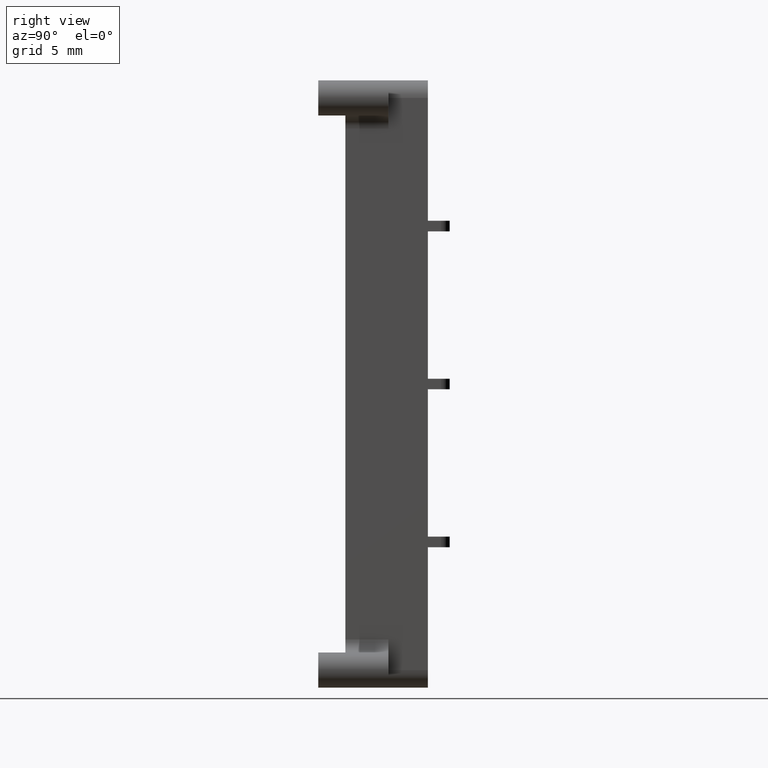
[diagram: clean part render]
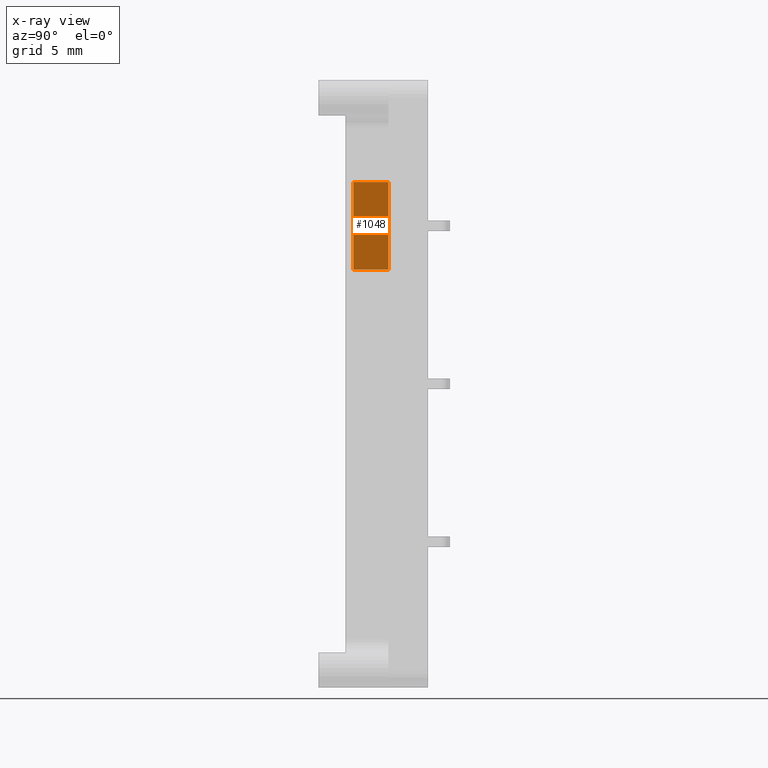
[diagram: x-ray — body ghosted, one internal face saturated and labeled with its STEP entity id]
A machine part, right view, then the same camera in x-ray: the body is ghosted and one INTERNAL B-rep face — a face not visible from any outside direction — is saturated and labeled: STEP entity #1048.
In plain terms, the highlighted planar face has unit normal (-1, -0, -0).
Its self-contained STEP definition (entity closure, byte-faithful):
#958 = EDGE_CURVE ( 'NONE', #2355, #4689, #4935, .T. ) ;
#971 = EDGE_CURVE ( 'NONE', #2355, #2358, #4962, .T. ) ;
#981 = EDGE_CURVE ( 'NONE', #4704, #4708, #4980, .T. ) ;
#1008 = EDGE_CURVE ( 'NONE', #4670, #2363, #5088, .T. ) ;
#1037 = EDGE_CURVE ( 'NONE', #2394, #2358, #1964, .T. ) ;
#1041 = EDGE_CURVE ( 'NONE', #2363, #2394, #2022, .T. ) ;
#1048 = ADVANCED_FACE ( 'NONE', ( #2034 ), #2008, .F. ) ;
#1104 = CARTESIAN_POINT ( 'NONE',  ( 452.7252094327940300, 144.0878730676890000, 29.39999999999999900 ) ) ;
#1113 = CARTESIAN_POINT ( 'NONE',  ( 452.7252094327940300, 146.0878730676890000, 24.40000000000000600 ) ) ;
#1129 = CARTESIAN_POINT ( 'NONE',  ( 452.7252094327940300, 144.0878730676890000, 24.40000000000000600 ) ) ;
#1189 = CARTESIAN_POINT ( 'NONE',  ( 452.7252094327940300, 146.0878730676890000, 29.39999999999999900 ) ) ;
#1964 = LINE ( 'NONE', #1969, #2886 ) ;
#1967 = DIRECTION ( 'NONE',  ( -0.0000000000000000000, -2.733577826868160200E-020, -1.000000000000000000 ) ) ;
#1969 = CARTESIAN_POINT ( 'NONE',  ( 452.7252094327940300, 146.0878730676890000, 4.400000000000000400 ) ) ;
#1993 = DIRECTION ( 'NONE',  ( -3.492165866658390800E-015, 0.0000000000000000000, 1.000000000000000000 ) ) ;
#1999 = CARTESIAN_POINT ( 'NONE',  ( 452.7252094327940300, 146.0878730676890000, 29.39999999999999900 ) ) ;
#2001 = DIRECTION ( 'NONE',  ( -2.625714205539857000E-033, 1.000000000000000000, -9.169429524186343400E-048 ) ) ;
#2008 = PLANE ( 'NONE',  #2893 ) ;
#2009 = CARTESIAN_POINT ( 'NONE',  ( 452.7252094327940300, 146.0878730676890000, 24.40000000000000200 ) ) ;
#2022 = LINE ( 'NONE', #1999, #2926 ) ;
#2034 = FACE_OUTER_BOUND ( 'NONE', #4650, .T. ) ;
#2038 = DIRECTION ( 'NONE',  ( -1.000000000000000000, -2.625714205539857000E-033, -3.492165866658390800E-015 ) ) ;
#2355 = VERTEX_POINT ( 'NONE', #1129 ) ;
#2358 = VERTEX_POINT ( 'NONE', #1113 ) ;
#2363 = VERTEX_POINT ( 'NONE', #1104 ) ;
#2394 = VERTEX_POINT ( 'NONE', #1189 ) ;
#2830 = VECTOR ( 'NONE', #4959, 1000.000000000000000 ) ;
#2832 = VECTOR ( 'NONE', #4944, 1000.000000000000000 ) ;
#2841 = VECTOR ( 'NONE', #4974, 1000.000000000000000 ) ;
#2886 = VECTOR ( 'NONE', #1967, 1000.000000000000000 ) ;
#2893 = AXIS2_PLACEMENT_3D ( 'NONE', #2009, #2038, #1993 ) ;
#2925 = VECTOR ( 'NONE', #5070, 1000.000000000000000 ) ;
#2926 = VECTOR ( 'NONE', #2001, 1000.000000000000000 ) ;
#3403 = VECTOR ( 'NONE', #4026, 1000.000000000000000 ) ;
#3417 = VECTOR ( 'NONE', #3879, 1000.000000000000000 ) ;
#3838 = EDGE_CURVE ( 'NONE', #4689, #4704, #4043, .T. ) ;
#3846 = EDGE_CURVE ( 'NONE', #4708, #4670, #3876, .T. ) ;
#3876 = LINE ( 'NONE', #3878, #3417 ) ;
#3878 = CARTESIAN_POINT ( 'NONE',  ( 452.7252094327940300, 144.0878730676890000, 24.40000000000000200 ) ) ;
#3879 = DIRECTION ( 'NONE',  ( -3.492165866658390800E-015, 0.0000000000000000000, 1.000000000000000000 ) ) ;
#3942 = CARTESIAN_POINT ( 'NONE',  ( 452.7252094327940300, 144.0878730676890000, 27.89999999999998100 ) ) ;
#3979 = CARTESIAN_POINT ( 'NONE',  ( 452.7252094327940300, 144.0878730676890000, 27.20000000000001400 ) ) ;
#3987 = CARTESIAN_POINT ( 'NONE',  ( 452.7252094327940300, 144.0878730676890000, 25.90000000000000900 ) ) ;
#3997 = CARTESIAN_POINT ( 'NONE',  ( 452.7252094327940300, 144.0878730676890000, 26.60000000000001200 ) ) ;
#4026 = DIRECTION ( 'NONE',  ( -3.492165866658390800E-015, 0.0000000000000000000, 1.000000000000000000 ) ) ;
#4030 = CARTESIAN_POINT ( 'NONE',  ( 452.7252094327940300, 144.0878730676890000, 24.40000000000000200 ) ) ;
#4043 = LINE ( 'NONE', #4030, #3403 ) ;
#4389 = ORIENTED_EDGE ( 'NONE', *, *, #958, .F. ) ;
#4392 = ORIENTED_EDGE ( 'NONE', *, *, #1041, .F. ) ;
#4393 = ORIENTED_EDGE ( 'NONE', *, *, #1037, .F. ) ;
#4411 = ORIENTED_EDGE ( 'NONE', *, *, #3838, .F. ) ;
#4428 = ORIENTED_EDGE ( 'NONE', *, *, #971, .T. ) ;
#4438 = ORIENTED_EDGE ( 'NONE', *, *, #981, .F. ) ;
#4461 = ORIENTED_EDGE ( 'NONE', *, *, #3846, .F. ) ;
#4494 = ORIENTED_EDGE ( 'NONE', *, *, #1008, .F. ) ;
#4650 = EDGE_LOOP ( 'NONE', ( #4428, #4393, #4392, #4494, #4461, #4438, #4411, #4389 ) ) ;
#4670 = VERTEX_POINT ( 'NONE', #3942 ) ;
#4689 = VERTEX_POINT ( 'NONE', #3987 ) ;
#4704 = VERTEX_POINT ( 'NONE', #3997 ) ;
#4708 = VERTEX_POINT ( 'NONE', #3979 ) ;
#4935 = LINE ( 'NONE', #4937, #2832 ) ;
#4937 = CARTESIAN_POINT ( 'NONE',  ( 452.7252094327940300, 144.0878730676890000, 24.40000000000000200 ) ) ;
#4944 = DIRECTION ( 'NONE',  ( -3.492165866658390800E-015, 0.0000000000000000000, 1.000000000000000000 ) ) ;
#4959 = DIRECTION ( 'NONE',  ( 9.546107180843072800E-035, 1.000000000000000000, -2.733577826868160200E-020 ) ) ;
#4962 = LINE ( 'NONE', #4965, #2830 ) ;
#4965 = CARTESIAN_POINT ( 'NONE',  ( 452.7252094327940300, 146.0878730676890000, 24.40000000000001300 ) ) ;
#4972 = CARTESIAN_POINT ( 'NONE',  ( 452.7252094327940300, 144.0878730676890000, 24.40000000000000200 ) ) ;
#4974 = DIRECTION ( 'NONE',  ( -3.492165866658390800E-015, 0.0000000000000000000, 1.000000000000000000 ) ) ;
#4980 = LINE ( 'NONE', #4972, #2841 ) ;
#5070 = DIRECTION ( 'NONE',  ( -3.492165866658390800E-015, 0.0000000000000000000, 1.000000000000000000 ) ) ;
#5088 = LINE ( 'NONE', #5089, #2925 ) ;
#5089 = CARTESIAN_POINT ( 'NONE',  ( 452.7252094327940300, 144.0878730676890000, 24.40000000000000200 ) ) ;